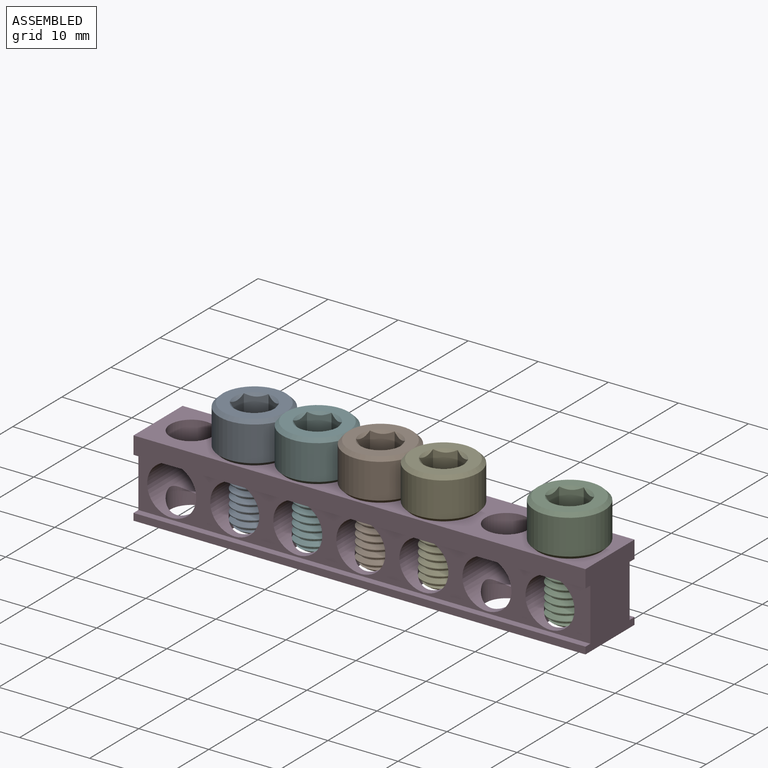
[diagram: assembled view]
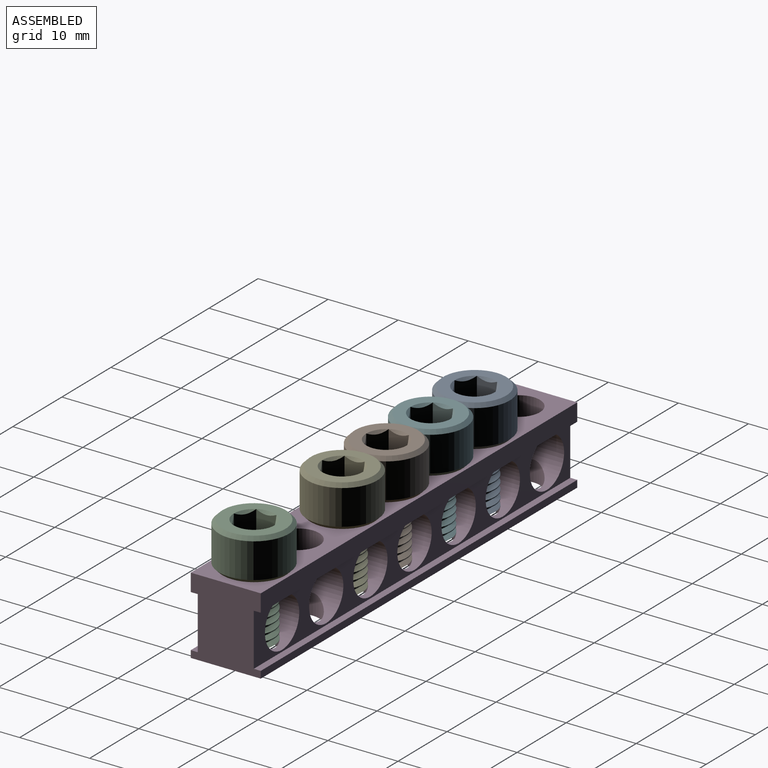
[diagram: assembled view, second angle]
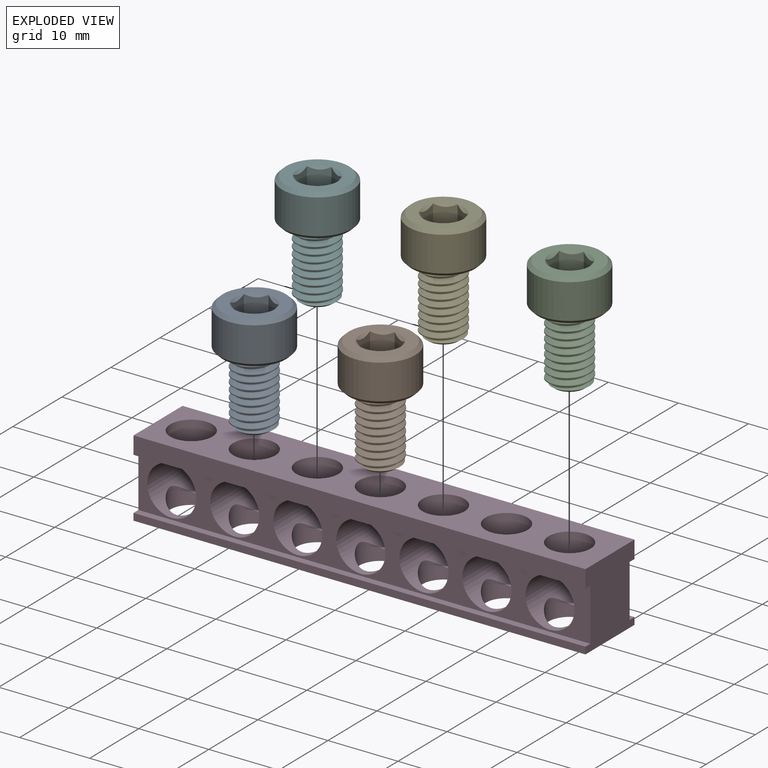
[diagram: exploded view]
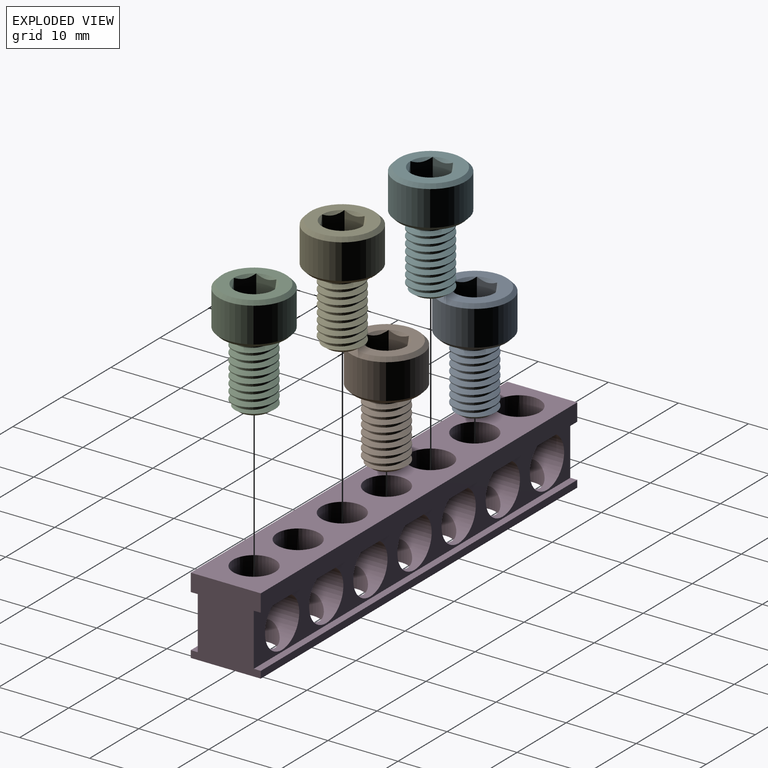
[diagram: exploded view, second angle]
ASSEMBLY  parts=6 mates=5
PART A: 24 faces, bbox 11.1x11.1x17.3 mm
  f0: cone r=5mm half-angle=45deg, axis (0,0,-1), area 21.1mm2, adj f1,f8
  f1: plane 9.39x9.39mm, normal (0,0,1), area 41mm2, adj f0,f2,f5,f6,f7
  f2: bspline ~10.57x6mm, area 121mm2, adj f1,f3,f5,f7
  f3: cone r=2.1mm half-angle=55deg, axis (0,0,-1), area 10.8mm2, adj f2,f4,f5,f6,f7
  f4: plane 4.19x4.19mm, normal (0,0,1), area 13.8mm2, adj f3
  f5: cylinder r=2.35mm len=9.82mm, axis (0,0,-1), area 18.1mm2, adj f1,f2,f3,f6
  f6: bspline ~10.2x5.8mm, area 121mm2, adj f1,f3,f5,f7
  f7: cylinder r=3mm len=9.37mm, axis (0,0,1), area 22.1mm2, adj f1,f2,f3,f6
  f8: cylinder r=5mm len=10mm, axis (0,0,1), area 157.1mm2, adj f0,f9
  f9: cone r=4.5mm half-angle=45deg, axis (0,0,1), area 21.1mm2, adj f8,f10
  f10: plane 9x9mm, normal (0,0,-1), area 37.4mm2, adj f9,f11,f19,f20,f21,f22,f23
  f11: cone r=2.89mm half-angle=45deg, axis (0,0,-1), area 0mm2, adj f10,f12
  f12: plane 4.84x3.59mm, normal (-0.5,-0.87,0), area 10.1mm2, adj f11,f13,f17,f18
  f13: plane 5.77x5mm, normal (0,0,-1), area 21.7mm2, adj f12,f14,f15,f16,f17,f18
  f14: plane 4.03x3.17mm, normal (1,0,0), area 10.1mm2, adj f13,f15,f18,f22
  f15: plane 4.84x3.59mm, normal (0.5,0.87,0), area 10.1mm2, adj f13,f14,f16,f21
  f16: plane 4.84x3.59mm, normal (-0.5,0.87,0), area 10.1mm2, adj f13,f15,f17,f20
  f17: plane 4.84x3.98mm, normal (-1,0,0), area 10.1mm2, adj f12,f13,f16,f19
  f18: plane 4.84x3.59mm, normal (0.5,-0.87,0), area 10.1mm2, adj f12,f13,f14,f23
  f19: cone r=2.89mm half-angle=45deg, axis (0,0,-1), area 0mm2, adj f10,f17
  f20: cone r=2.89mm half-angle=45deg, axis (0,0,-1), area 0mm2, adj f10,f16
  f21: cone r=2.89mm half-angle=45deg, axis (0,0,-1), area 0mm2, adj f10,f15
  f22: cone r=2.89mm half-angle=45deg, axis (0,0,-1), area 0.8mm2, adj f10,f14
  f23: cone r=2.89mm half-angle=45deg, axis (0,0,-1), area 0mm2, adj f10,f18
PART B: same geometry as A
PART C: same geometry as A
PART D: 35 faces, bbox 64.5x10x11 mm
  f0: cylinder r=3mm len=6mm, axis (0,0,1), area 38.3mm2, adj f7,f34
  f1: cylinder r=3mm len=6mm, axis (0,0,1), area 38.3mm2, adj f7,f32
  f2: cylinder r=3mm len=6mm, axis (0,0,1), area 38.3mm2, adj f7,f30
  f3: cylinder r=3mm len=6mm, axis (0,0,1), area 38.3mm2, adj f7,f28
  f4: cylinder r=3mm len=6mm, axis (0,0,1), area 38.3mm2, adj f7,f26
  f5: cylinder r=3mm len=6mm, axis (0,0,1), area 38.3mm2, adj f7,f24
  f6: cylinder r=3mm len=6mm, axis (0,0,1), area 38.3mm2, adj f7,f22
  f7: plane 64.52x10mm, normal (0,0,-1), area 447.2mm2, adj f0,f1,f2,f3,f4,f5,f6,f8
  f8: plane 64.52x1mm, normal (0,1,0), area 64.5mm2, adj f7,f9,f14,f15
  f9: plane 64.52x1mm, normal (0,0,1), area 64.5mm2, adj f8,f10,f14,f15
  f10: plane 64.52x7.5mm, normal (0,1,0), area 214.5mm2, adj f9,f11,f14,f15,f22,f24,f26,f28
  f11: plane 64.52x1mm, normal (0,0,-1), area 64.5mm2, adj f10,f12,f14,f15
  f12: plane 64.52x2.5mm, normal (0,1,0), area 161.3mm2, adj f11,f13,f14,f15
  f13: plane 64.52x10mm, normal (0,0,1), area 447.2mm2, adj f12,f14,f15,f20,f21,f23,f25,f27
  f14: plane 11x10mm, normal (1,0,0), area 95mm2, adj f7,f8,f9,f10,f11,f12,f13,f16
  f15: plane 11x10mm, normal (-1,0,0), area 95mm2, adj f7,f8,f9,f10,f11,f12,f13,f16
  f16: plane 64.52x1mm, normal (0,-1,0), area 64.5mm2, adj f7,f14,f15,f17
  f17: plane 64.52x1mm, normal (0,0,1), area 64.5mm2, adj f14,f15,f16,f18
  f18: plane 64.52x7.5mm, normal (0,-1,0), area 214.5mm2, adj f14,f15,f17,f19,f22,f24,f26,f28
  f19: plane 64.52x1mm, normal (0,0,-1), area 64.5mm2, adj f14,f15,f18,f20
  f20: plane 64.52x2.5mm, normal (0,-1,0), area 161.3mm2, adj f13,f14,f15,f19
  f21: cylinder r=3mm len=6mm, axis (0,0,1), area 66.5mm2, adj f13,f22
  f22: cylinder r=3.5mm len=8mm, axis (0,-1,0), area 111.7mm2, adj f6,f10,f18,f21
  f23: cylinder r=3mm len=6mm, axis (0,0,1), area 66.5mm2, adj f13,f24
  f24: cylinder r=3.5mm len=8mm, axis (0,-1,0), area 111.7mm2, adj f5,f10,f18,f23
  f25: cylinder r=3mm len=6mm, axis (0,0,1), area 66.5mm2, adj f13,f26
  f26: cylinder r=3.5mm len=8mm, axis (0,-1,0), area 111.7mm2, adj f4,f10,f18,f25
  f27: cylinder r=3mm len=6mm, axis (0,0,1), area 66.5mm2, adj f13,f28
  f28: cylinder r=3.5mm len=8mm, axis (0,-1,0), area 111.7mm2, adj f3,f10,f18,f27
  f29: cylinder r=3mm len=6mm, axis (0,0,1), area 66.5mm2, adj f13,f30
  f30: cylinder r=3.5mm len=8mm, axis (0,-1,0), area 111.7mm2, adj f2,f10,f18,f29
  f31: cylinder r=3mm len=6mm, axis (0,0,1), area 66.5mm2, adj f13,f32
  f32: cylinder r=3.5mm len=8mm, axis (0,-1,0), area 111.7mm2, adj f1,f10,f18,f31
  f33: cylinder r=3mm len=6mm, axis (0,0,1), area 66.5mm2, adj f13,f34
  f34: cylinder r=3.5mm len=8mm, axis (0,-1,0), area 111.7mm2, adj f0,f10,f18,f33
PART E: same geometry as A
PART F: same geometry as A
PLACE A rot(axis=(1,0,0),180deg) t=(-18.51,0,1)mm
PLACE B rot(axis=(1,0,0),180deg) t=(-0.51,0,1)mm
PLACE C rot(axis=(1,0,0),180deg) t=(26.49,0,1)mm
PLACE D at identity
PLACE E rot(axis=(1,0,0),180deg) t=(8.49,0,1)mm
PLACE F rot(axis=(1,0,0),180deg) t=(-9.51,0,1)mm
MATE revolute A.f0 <-> D.f5  axis (0,0,-1) through (-18.51,0,11)mm
MATE revolute B.f0 <-> D.f3  axis (0,0,-1) through (-0.51,0,11)mm
MATE revolute E.f0 <-> D.f2  axis (0,0,-1) through (8.49,0,11)mm
MATE revolute C.f0 <-> D.f0  axis (0,0,-1) through (26.49,0,11)mm
MATE revolute F.f0 <-> D.f4  axis (0,0,-1) through (-9.51,0,11)mm
